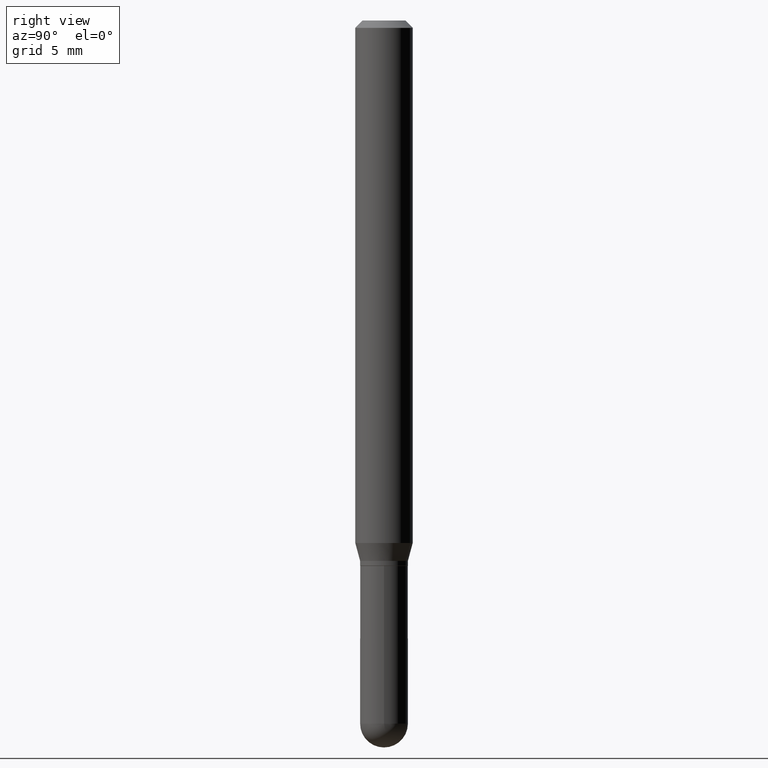
[diagram: clean part render]
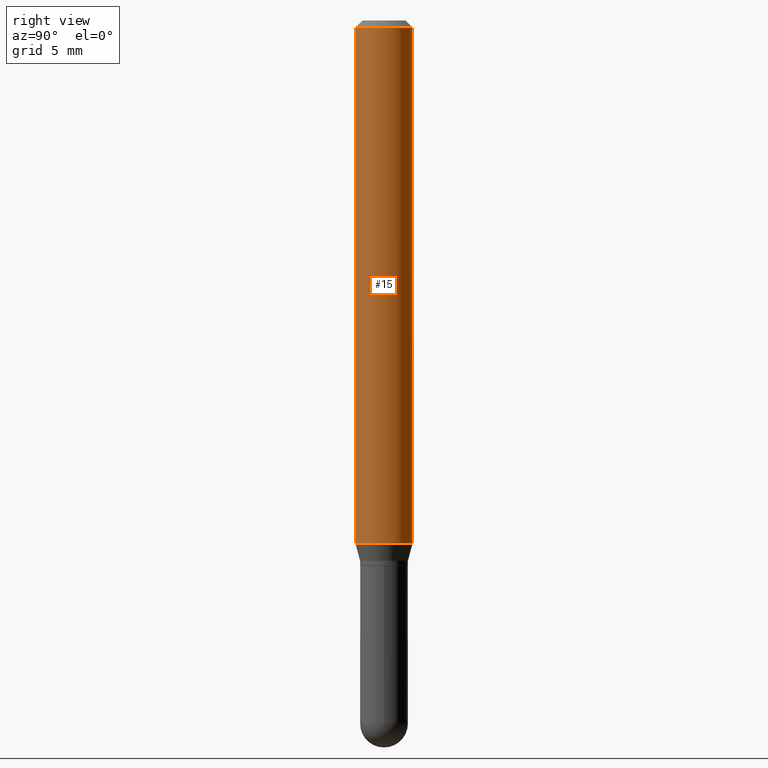
[diagram: same view with one face highlighted and labeled with its STEP entity id]
A machine part, right view. The second image highlights one B-rep face of the part: STEP entity #15.
In plain terms, the highlighted cylindrical surface (edge-blend (fillet) strip) has radius 1.4999 mm, axis along (-0, 0, 1).
Its self-contained STEP definition (entity closure, byte-faithful):
#7 = CARTESIAN_POINT ( 'NONE',  ( 4.195754854663657226E-16, 0.05904999999999996363, -0.01500000000000016945 ) ) ;
#14 = CIRCLE ( 'NONE', #370, 0.05904999999999999832 ) ;
#15 = ADVANCED_FACE ( 'NONE', ( #469 ), #345, .T. ) ;
#20 = LINE ( 'NONE', #282, #357 ) ;
#27 = EDGE_CURVE ( 'NONE', #35, #374, #14, .T. ) ;
#35 = VERTEX_POINT ( 'NONE', #190 ) ;
#41 = VERTEX_POINT ( 'NONE', #7 ) ;
#44 = DIRECTION ( 'NONE',  ( -6.982962677686265922E-15, -1.000000000000000000, 4.626330217890369336E-15 ) ) ;
#50 = DIRECTION ( 'NONE',  ( -2.445597689744414276E-29, 3.491296770250663257E-15, 1.000000000000000000 ) ) ;
#60 = LINE ( 'NONE', #322, #471 ) ;
#69 = ORIENTED_EDGE ( 'NONE', *, *, #490, .T. ) ;
#84 = EDGE_CURVE ( 'NONE', #35, #108, #20, .T. ) ;
#103 = EDGE_LOOP ( 'NONE', ( #390, #69, #468, #372 ) ) ;
#108 = VERTEX_POINT ( 'NONE', #197 ) ;
#148 = AXIS2_PLACEMENT_3D ( 'NONE', #312, #436, #270 ) ;
#190 = CARTESIAN_POINT ( 'NONE',  ( -4.123439461173478031E-16, -0.05905000000000376614, -1.075339299545447158 ) ) ;
#191 = AXIS2_PLACEMENT_3D ( 'NONE', #304, #369, #330 ) ;
#197 = CARTESIAN_POINT ( 'NONE',  ( -4.123439461173737369E-16, -0.05905000000000006771, -0.01499999999999975485 ) ) ;
#231 = CIRCLE ( 'NONE', #191, 0.05905000000000001914 ) ;
#270 = DIRECTION ( 'NONE',  ( -6.982962677686265922E-15, -1.000000000000000000, 3.491296770250664046E-15 ) ) ;
#273 = CARTESIAN_POINT ( 'NONE',  ( 2.629847306659722038E-29, -3.754328623426630986E-15, -1.075339299545447158 ) ) ;
#282 = CARTESIAN_POINT ( 'NONE',  ( -4.123439461173740327E-16, -0.05905000000000000526, 2.061610742833017337E-16 ) ) ;
#304 = CARTESIAN_POINT ( 'NONE',  ( 3.668396534616611833E-31, -5.236945155375981672E-17, -0.01499999999999996128 ) ) ;
#312 = CARTESIAN_POINT ( 'NONE',  ( 0.000000000000000000, 0.000000000000000000, 0.000000000000000000 ) ) ;
#322 = CARTESIAN_POINT ( 'NONE',  ( 4.195754854663391478E-16, 0.05905000000000000526, -2.061610742833017337E-16 ) ) ;
#330 = DIRECTION ( 'NONE',  ( -6.982962677686265922E-15, -1.000000000000000000, 3.505890868245044514E-15 ) ) ;
#345 = CYLINDRICAL_SURFACE ( 'NONE', #148, 0.05905000000000000526 ) ;
#357 = VECTOR ( 'NONE', #50, 39.37007874015748143 ) ;
#364 = DIRECTION ( 'NONE',  ( -2.445597689744414276E-29, 3.491296770250663257E-15, 1.000000000000000000 ) ) ;
#369 = DIRECTION ( 'NONE',  ( -2.445597689744413996E-29, 3.491296770250663651E-15, 1.000000000000000000 ) ) ;
#370 = AXIS2_PLACEMENT_3D ( 'NONE', #273, #391, #44 ) ;
#372 = ORIENTED_EDGE ( 'NONE', *, *, #84, .F. ) ;
#374 = VERTEX_POINT ( 'NONE', #413 ) ;
#390 = ORIENTED_EDGE ( 'NONE', *, *, #27, .T. ) ;
#391 = DIRECTION ( 'NONE',  ( -2.445597689744413996E-29, 3.491296770250663651E-15, 1.000000000000000000 ) ) ;
#413 = CARTESIAN_POINT ( 'NONE',  ( 4.195754854663652789E-16, 0.05904999999999623744, -1.075339299545447380 ) ) ;
#420 = EDGE_CURVE ( 'NONE', #108, #41, #231, .T. ) ;
#436 = DIRECTION ( 'NONE',  ( -2.445597689744413996E-29, 3.491296770250663651E-15, 1.000000000000000000 ) ) ;
#468 = ORIENTED_EDGE ( 'NONE', *, *, #420, .F. ) ;
#469 = FACE_OUTER_BOUND ( 'NONE', #103, .T. ) ;
#471 = VECTOR ( 'NONE', #364, 39.37007874015748143 ) ;
#490 = EDGE_CURVE ( 'NONE', #374, #41, #60, .T. ) ;